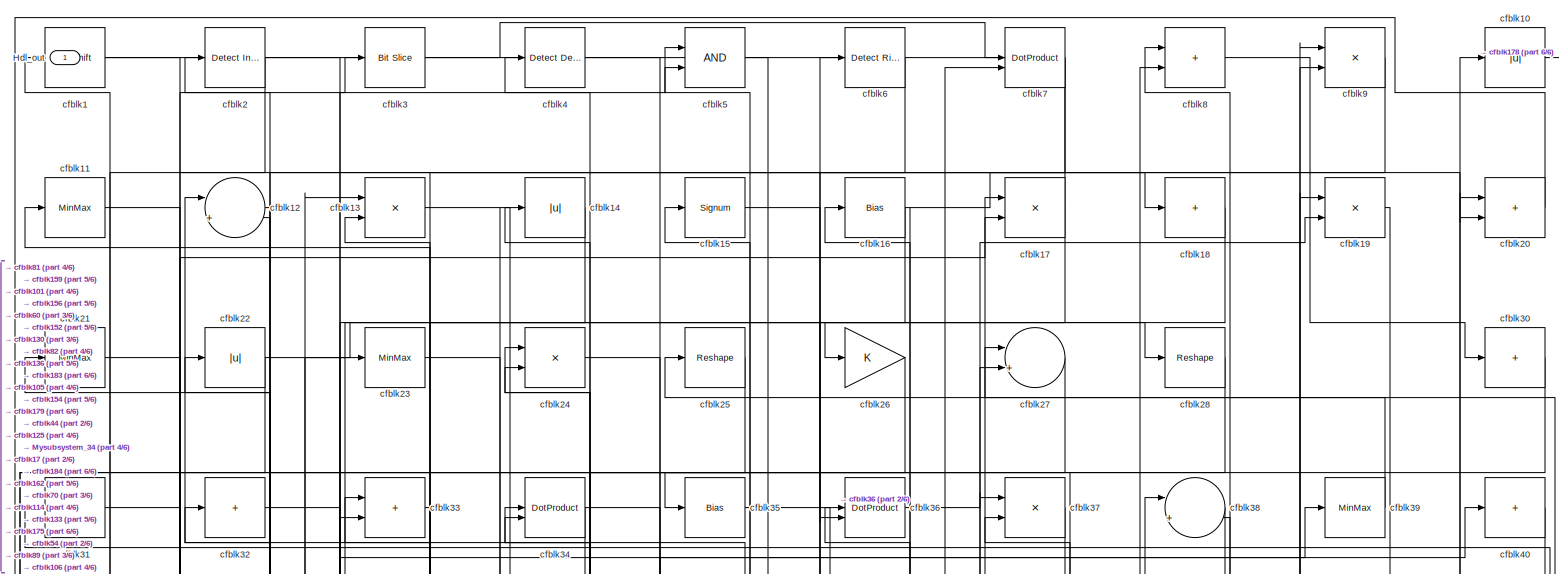
[diagram: root canvas - part 1/6, full width, top band]
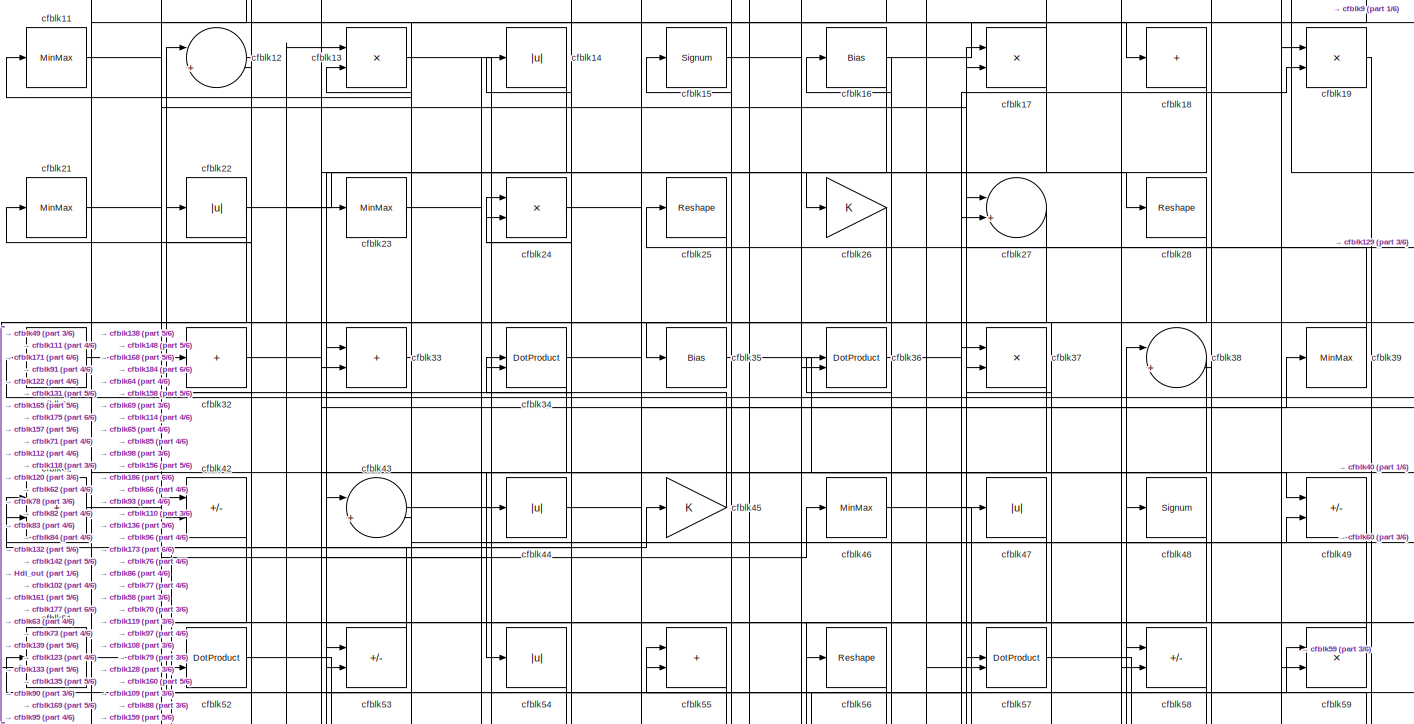
[diagram: root canvas - part 2/6, full width, top band]
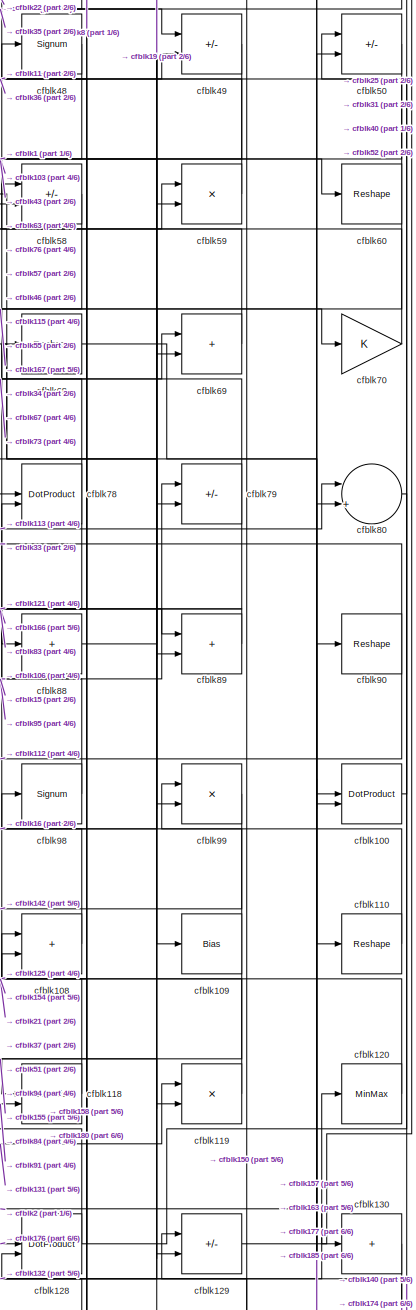
[diagram: root canvas - part 3/6, middle right region]
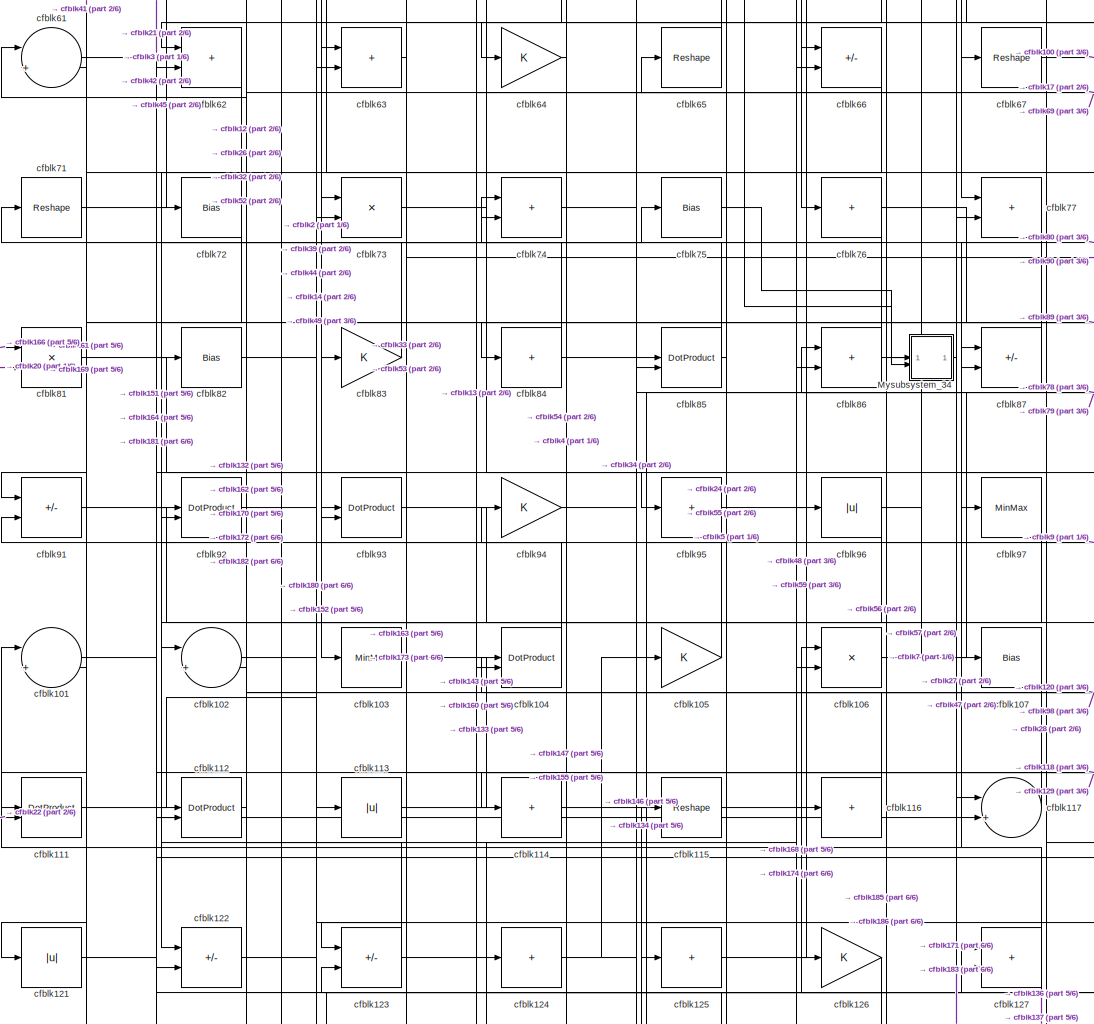
[diagram: root canvas - part 4/6, central region]
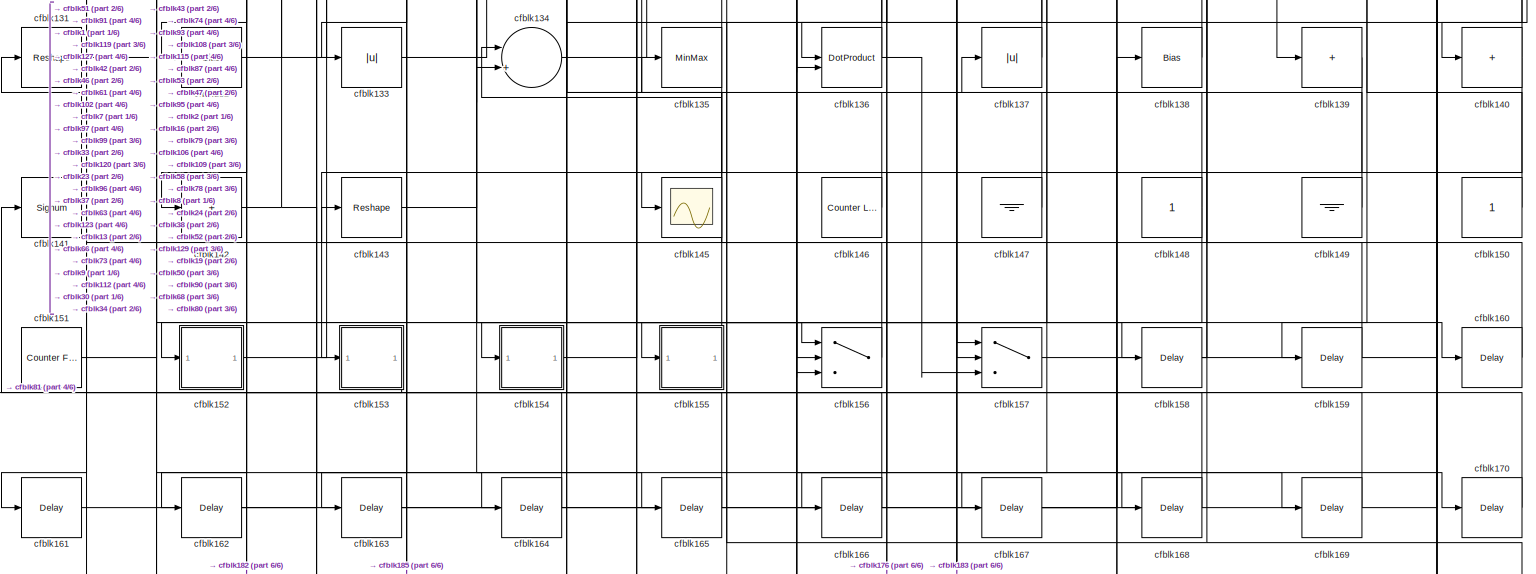
[diagram: root canvas - part 5/6, full width, bottom band]
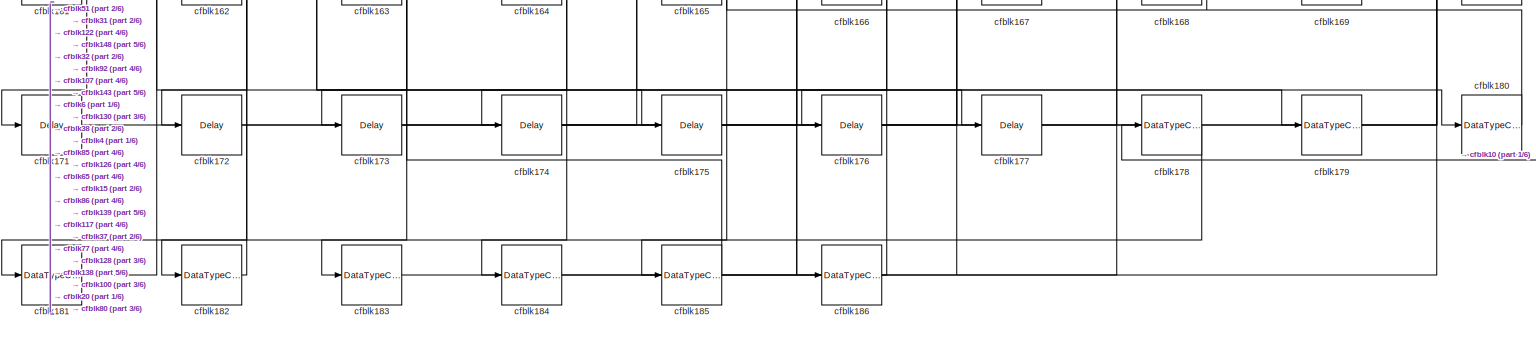
[diagram: root canvas - part 6/6, full width, bottom band]
MODEL slx_0590d7d05d27
KIND model
CONFIG AbsTol = auto
CONFIG EnableMultiTasking = off
CONFIG FixedStep = auto
CONFIG MaxStep = auto
CONFIG MinStep = auto
CONFIG RelTol = 1e-3
CONFIG SampleTimeConstraint = Unconstrained
CONFIG SolverName = VariableStepAuto
CONFIG StartTime = 0.0
CONFIG StopTime = 10.0
BLOCK [Outport] Hdl_out
  OutDataTypeStr = uint8
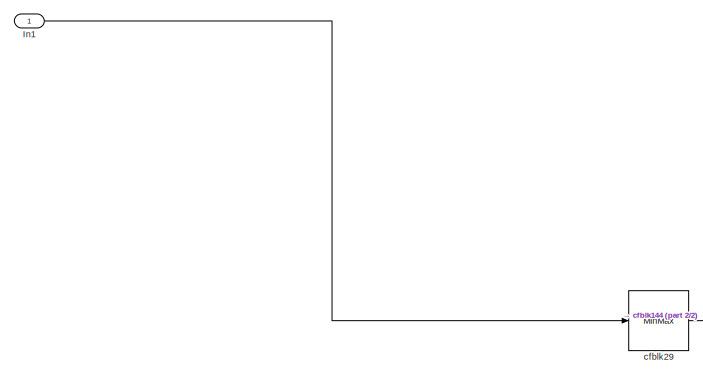
[diagram: Mysubsystem_34 - part 1/2, top center region]
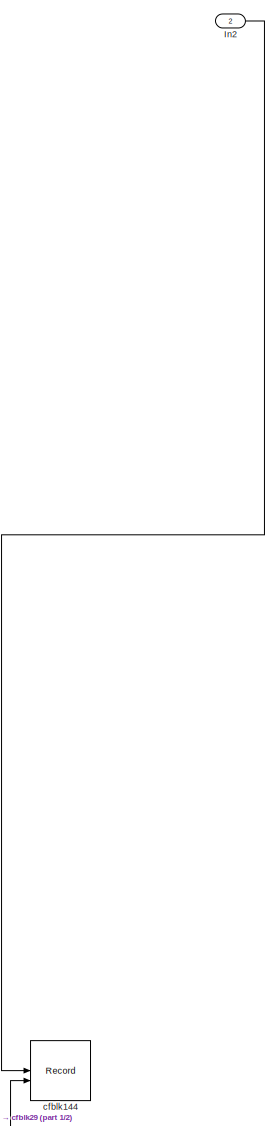
[diagram: Mysubsystem_34 - part 2/2, bottom left region]
BLOCK [SubSystem] Mysubsystem_34
  RTWFcnName = Mysubsystem_34
  RTWFcnNameOpts = User specified
  RTWFileNameOpts = Use function name
  RTWSystemCode = Reusable function
  TreatAsAtomicUnit = on
BLOCK [Inport] Mysubsystem_34/In1
BLOCK [Inport] Mysubsystem_34/In2
  Port = 2
BLOCK [Record] Mysubsystem_34/cfblk144
  CompatibilityTag = XY
  FileSettingsInternal = {"entries":[{"content":{"excelSettings":{"content":{},"type":"Streamout.ExcelSettings"}},"type":"Streamout.FileSettingStorage","uuid":""}],"packageUris":["http:\/\/schema.mathworks.com\/mf0\/streamout_blocks\/R2020a"],"version":"1.0"}
  Layout = [1 1]
  SignalsInternal = {"entries":[{"content":{},"type":"RecordBlkView.InputSignals","uuid":""}],"packageUris":["http:\/\/schema.mathworks.com\/mf0\/streamout_blocks\/R2020a"],"version":"1.0"}
  VisualizationBindings = {"xyplotplugin":{"info":[{"series":[],"subplotID":1}]}}
  st = -1
BLOCK [MinMax] Mysubsystem_34/cfblk29
BLOCK [Reference] cfblk1  REF=hdlsllib/Logic and Bit
Operations/Bit Shift
  SourceBlock = hdlsllib/Logic and Bit\nOperations/Bit Shift
  SourceType = Bit Shift
BLOCK [Abs] cfblk10
  OutDataTypeStr = uint8
  SaturateOnIntegerOverflow = off
BLOCK [DotProduct] cfblk100
  OutDataTypeStr = uint8
BLOCK [Sum] cfblk101
  Inputs = |++
  OutDataTypeStr = uint8
BLOCK [Sum] cfblk102
  Inputs = |++
  OutDataTypeStr = uint8
BLOCK [MinMax] cfblk103
  OutDataTypeStr = uint8
BLOCK [DotProduct] cfblk104
  OutDataTypeStr = uint8
BLOCK [Gain] cfblk105
  OutDataTypeStr = uint8
BLOCK [Product] cfblk106
  Inputs = */
  OutDataTypeStr = uint8
  RndMeth = Zero
  SaturateOnIntegerOverflow = on
BLOCK [Bias] cfblk107
  Bias = 0.0
  SaturateOnIntegerOverflow = off
BLOCK [Sum] cfblk108
  IconShape = rectangular
  OutDataTypeStr = uint8
BLOCK [Bias] cfblk109
  Bias = 0.0
  SaturateOnIntegerOverflow = off
BLOCK [MinMax] cfblk11
  OutDataTypeStr = uint8
BLOCK [Reshape] cfblk110
BLOCK [DotProduct] cfblk111
  OutDataTypeStr = uint8
BLOCK [DotProduct] cfblk112
  OutDataTypeStr = uint8
BLOCK [Abs] cfblk113
  OutDataTypeStr = uint8
  SaturateOnIntegerOverflow = off
BLOCK [Sum] cfblk114
  IconShape = rectangular
  Inputs = +
  OutDataTypeStr = uint8
BLOCK [Reshape] cfblk115
BLOCK [Sum] cfblk116
  IconShape = rectangular
  Inputs = +
  OutDataTypeStr = uint8
BLOCK [Sum] cfblk117
  Inputs = |++
  OutDataTypeStr = uint8
BLOCK [DotProduct] cfblk118
  OutDataTypeStr = uint8
BLOCK [Product] cfblk119
  Inputs = */
  OutDataTypeStr = uint8
  RndMeth = Zero
  SaturateOnIntegerOverflow = on
BLOCK [Sum] cfblk12
  Inputs = |++
  OutDataTypeStr = uint8
BLOCK [MinMax] cfblk120
  OutDataTypeStr = uint8
BLOCK [Abs] cfblk121
  OutDataTypeStr = uint8
  SaturateOnIntegerOverflow = off
BLOCK [Sum] cfblk122
  IconShape = rectangular
  Inputs = +-
  OutDataTypeStr = uint8
BLOCK [Sum] cfblk123
  IconShape = rectangular
  Inputs = +-
  OutDataTypeStr = uint8
BLOCK [Sum] cfblk124
  IconShape = rectangular
  Inputs = +
  OutDataTypeStr = uint8
BLOCK [Sum] cfblk125
  IconShape = rectangular
  Inputs = +
  OutDataTypeStr = uint8
BLOCK [Gain] cfblk126
  OutDataTypeStr = uint8
BLOCK [Sum] cfblk127
  IconShape = rectangular
  OutDataTypeStr = uint8
BLOCK [DotProduct] cfblk128
  OutDataTypeStr = uint8
BLOCK [Sum] cfblk129
  IconShape = rectangular
  Inputs = +-
  OutDataTypeStr = uint8
BLOCK [Product] cfblk13
  Inputs = */
  OutDataTypeStr = uint8
  RndMeth = Zero
  SaturateOnIntegerOverflow = on
BLOCK [Sum] cfblk130
  IconShape = rectangular
  Inputs = +
  OutDataTypeStr = uint8
BLOCK [Reshape] cfblk131
BLOCK [Bias] cfblk132
  Bias = 0.0
  SaturateOnIntegerOverflow = off
BLOCK [Abs] cfblk133
  OutDataTypeStr = uint8
  SaturateOnIntegerOverflow = off
BLOCK [Sum] cfblk134
  Inputs = |++
  OutDataTypeStr = uint8
BLOCK [MinMax] cfblk135
  OutDataTypeStr = uint8
BLOCK [DotProduct] cfblk136
  OutDataTypeStr = uint8
BLOCK [Abs] cfblk137
  OutDataTypeStr = uint8
  SaturateOnIntegerOverflow = off
BLOCK [Bias] cfblk138
  Bias = 0.0
  SaturateOnIntegerOverflow = off
BLOCK [Sum] cfblk139
  IconShape = rectangular
  Inputs = +
  OutDataTypeStr = uint8
BLOCK [Abs] cfblk14
  OutDataTypeStr = uint8
  SaturateOnIntegerOverflow = off
BLOCK [Sum] cfblk140
  IconShape = rectangular
  Inputs = +
  OutDataTypeStr = uint8
BLOCK [Signum] cfblk141
BLOCK [Sum] cfblk142
  IconShape = rectangular
  Inputs = +
  OutDataTypeStr = uint8
BLOCK [Reshape] cfblk143
BLOCK [Scope] cfblk145
  Floating = off
  NumInputPorts = 1
  ScopeSpecificationString = Simulink.scopes.TimeScopeBlockCfg('CurrentConfiguration', extmgr.ConfigurationSet(extmgr.Configuration('Core','General UI',true),extmgr.Configuration('Core','Source UI',true),extmgr.Configuration('Sources','WiredSimulink',true,'DataLoggingVariableName','ScopeData2','DataLoggingSaveFormat','Array','DataLoggingLimitDataPoints',true,'DataLoggingDecimation','1'),extmgr.Configuration('Visuals','Time Do...<+868ch>
BLOCK [Reference] cfblk146  REF=hdlsllib/Sources/Counter
Limited
  SourceBlock = hdlsllib/Sources/Counter\nLimited
  SourceType = Counter Limited
BLOCK [Ground] cfblk147
BLOCK [Constant] cfblk148
  OutDataTypeStr = uint8
  SampleTime = -1
BLOCK [Ground] cfblk149
BLOCK [Signum] cfblk15
BLOCK [Constant] cfblk150
  OutDataTypeStr = uint8
  SampleTime = -1
BLOCK [Reference] cfblk151  REF=hdlsllib/Sources/Counter
Free-Running
  SourceBlock = hdlsllib/Sources/Counter\nFree-Running
  SourceType = Counter Free-Running
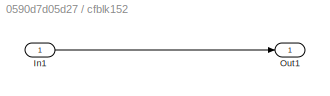
BLOCK [SubSystem] cfblk152
  LibrarySourceBlock = hdlsllib/Ports &\nSubsystems/Subsystem
BLOCK [Inport] cfblk152/In1
BLOCK [Outport] cfblk152/Out1
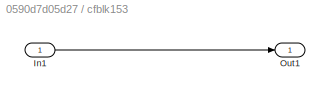
BLOCK [SubSystem] cfblk153
  LibrarySourceBlock = hdlsllib/Ports &\nSubsystems/Subsystem
BLOCK [Inport] cfblk153/In1
BLOCK [Outport] cfblk153/Out1
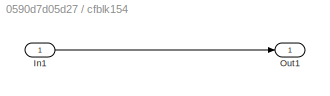
BLOCK [SubSystem] cfblk154
  LibrarySourceBlock = hdlsllib/Ports &\nSubsystems/Subsystem
BLOCK [Inport] cfblk154/In1
BLOCK [Outport] cfblk154/Out1
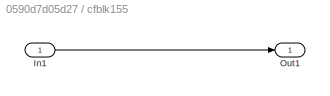
BLOCK [SubSystem] cfblk155
  LibrarySourceBlock = hdlsllib/Ports &\nSubsystems/Subsystem
BLOCK [Inport] cfblk155/In1
BLOCK [Outport] cfblk155/Out1
BLOCK [Switch] cfblk156
  InputSameDT = off
  OutDataTypeStr = uint8
  SaturateOnIntegerOverflow = off
BLOCK [Switch] cfblk157
  InputSameDT = off
  OutDataTypeStr = uint8
  SaturateOnIntegerOverflow = off
BLOCK [Delay] cfblk158
  InputPortMap = u0
  SampleTime = 1
BLOCK [Delay] cfblk159
  InputPortMap = u0
  SampleTime = 1
BLOCK [Bias] cfblk16
  Bias = 0.0
  SaturateOnIntegerOverflow = off
BLOCK [Delay] cfblk160
  InputPortMap = u0
  SampleTime = 1
BLOCK [Delay] cfblk161
  InputPortMap = u0
  SampleTime = 1
BLOCK [Delay] cfblk162
  InputPortMap = u0
  SampleTime = 1
BLOCK [Delay] cfblk163
  InputPortMap = u0
  SampleTime = 1
BLOCK [Delay] cfblk164
  InputPortMap = u0
  SampleTime = 1
BLOCK [Delay] cfblk165
  InputPortMap = u0
  SampleTime = 1
BLOCK [Delay] cfblk166
  InputPortMap = u0
  SampleTime = 1
BLOCK [Delay] cfblk167
  InputPortMap = u0
  SampleTime = 1
BLOCK [Delay] cfblk168
  InputPortMap = u0
  SampleTime = 1
BLOCK [Delay] cfblk169
  InputPortMap = u0
  SampleTime = 1
BLOCK [Product] cfblk17
  Inputs = */
  OutDataTypeStr = uint8
  RndMeth = Zero
  SaturateOnIntegerOverflow = on
BLOCK [Delay] cfblk170
  InputPortMap = u0
  SampleTime = 1
BLOCK [Delay] cfblk171
  InputPortMap = u0
  SampleTime = 1
BLOCK [Delay] cfblk172
  InputPortMap = u0
  SampleTime = 1
BLOCK [Delay] cfblk173
  InputPortMap = u0
  SampleTime = 1
BLOCK [Delay] cfblk174
  InputPortMap = u0
  SampleTime = 1
BLOCK [Delay] cfblk175
  InputPortMap = u0
  SampleTime = 1
BLOCK [Delay] cfblk176
  InputPortMap = u0
  SampleTime = 1
BLOCK [Delay] cfblk177
  InputPortMap = u0
  SampleTime = 1
BLOCK [DataTypeConversion] cfblk178
  OutDataTypeStr = uint8
  RndMeth = Floor
  SaturateOnIntegerOverflow = off
BLOCK [DataTypeConversion] cfblk179
  OutDataTypeStr = uint8
  RndMeth = Floor
  SaturateOnIntegerOverflow = off
BLOCK [Sum] cfblk18
  IconShape = rectangular
  Inputs = +
  OutDataTypeStr = uint8
BLOCK [DataTypeConversion] cfblk180
  OutDataTypeStr = uint8
  RndMeth = Floor
  SaturateOnIntegerOverflow = off
BLOCK [DataTypeConversion] cfblk181
  OutDataTypeStr = uint8
  RndMeth = Floor
  SaturateOnIntegerOverflow = off
BLOCK [DataTypeConversion] cfblk182
  OutDataTypeStr = uint8
  RndMeth = Floor
  SaturateOnIntegerOverflow = off
BLOCK [DataTypeConversion] cfblk183
  OutDataTypeStr = uint8
  RndMeth = Floor
  SaturateOnIntegerOverflow = off
BLOCK [DataTypeConversion] cfblk184
  OutDataTypeStr = uint8
  RndMeth = Floor
  SaturateOnIntegerOverflow = off
BLOCK [DataTypeConversion] cfblk185
  OutDataTypeStr = uint8
  RndMeth = Floor
  SaturateOnIntegerOverflow = off
BLOCK [DataTypeConversion] cfblk186
  OutDataTypeStr = uint8
  RndMeth = Floor
  SaturateOnIntegerOverflow = off
BLOCK [Product] cfblk19
  Inputs = */
  OutDataTypeStr = uint8
  RndMeth = Zero
  SaturateOnIntegerOverflow = on
BLOCK [Reference] cfblk2  REF=simulink/Logic and Bit
Operations/Detect
Increase
  LibrarySourceBlock = hdlsllib/Logic and Bit\nOperations/Detect\nIncrease
  SourceBlock = simulink/Logic and Bit\nOperations/Detect\nIncrease
  SourceType = Detect Increase
BLOCK [Sum] cfblk20
  IconShape = rectangular
  OutDataTypeStr = uint8
BLOCK [MinMax] cfblk21
  OutDataTypeStr = uint8
BLOCK [Abs] cfblk22
  OutDataTypeStr = uint8
  SaturateOnIntegerOverflow = off
BLOCK [MinMax] cfblk23
  OutDataTypeStr = uint8
BLOCK [Product] cfblk24
  Inputs = */
  OutDataTypeStr = uint8
  RndMeth = Zero
  SaturateOnIntegerOverflow = on
BLOCK [Reshape] cfblk25
BLOCK [Gain] cfblk26
  OutDataTypeStr = uint8
BLOCK [Sum] cfblk27
  Inputs = |++
  OutDataTypeStr = uint8
BLOCK [Reshape] cfblk28
BLOCK [Reference] cfblk3  REF=hdlsllib/Logic and Bit
Operations/Bit Slice
  SourceBlock = hdlsllib/Logic and Bit\nOperations/Bit Slice
  SourceType = Bit Slice
BLOCK [Sum] cfblk30
  IconShape = rectangular
  Inputs = +
  OutDataTypeStr = uint8
BLOCK [Sum] cfblk31
  IconShape = rectangular
  Inputs = +
  OutDataTypeStr = uint8
BLOCK [Sum] cfblk32
  IconShape = rectangular
  Inputs = +
  OutDataTypeStr = uint8
BLOCK [Sum] cfblk33
  IconShape = rectangular
  OutDataTypeStr = uint8
BLOCK [DotProduct] cfblk34
  OutDataTypeStr = uint8
BLOCK [Bias] cfblk35
  Bias = 0.0
  SaturateOnIntegerOverflow = off
BLOCK [DotProduct] cfblk36
  OutDataTypeStr = uint8
BLOCK [Product] cfblk37
  Inputs = */
  OutDataTypeStr = uint8
  RndMeth = Zero
  SaturateOnIntegerOverflow = on
BLOCK [Sum] cfblk38
  Inputs = |++
  OutDataTypeStr = uint8
BLOCK [MinMax] cfblk39
  OutDataTypeStr = uint8
BLOCK [Reference] cfblk4  REF=simulink/Logic and Bit
Operations/Detect
Decrease
  LibrarySourceBlock = hdlsllib/Logic and Bit\nOperations/Detect\nDecrease
  SourceBlock = simulink/Logic and Bit\nOperations/Detect\nDecrease
  SourceType = Detect Decrease
BLOCK [Sum] cfblk40
  IconShape = rectangular
  Inputs = +
  OutDataTypeStr = uint8
BLOCK [Sum] cfblk41
  IconShape = rectangular
  OutDataTypeStr = uint8
BLOCK [Sum] cfblk42
  IconShape = rectangular
  Inputs = +-
  OutDataTypeStr = uint8
BLOCK [Sum] cfblk43
  Inputs = |++
  OutDataTypeStr = uint8
BLOCK [Abs] cfblk44
  OutDataTypeStr = uint8
  SaturateOnIntegerOverflow = off
BLOCK [Gain] cfblk45
  OutDataTypeStr = uint8
BLOCK [MinMax] cfblk46
  OutDataTypeStr = uint8
BLOCK [Abs] cfblk47
  OutDataTypeStr = uint8
  SaturateOnIntegerOverflow = off
BLOCK [Signum] cfblk48
BLOCK [Sum] cfblk49
  IconShape = rectangular
  Inputs = +-
  OutDataTypeStr = uint8
BLOCK [Logic] cfblk5
  AllPortsSameDT = off
  OutDataTypeStr = boolean
BLOCK [Sum] cfblk50
  IconShape = rectangular
  Inputs = +-
  OutDataTypeStr = uint8
BLOCK [DotProduct] cfblk51
  OutDataTypeStr = uint8
BLOCK [DotProduct] cfblk52
  OutDataTypeStr = uint8
BLOCK [Sum] cfblk53
  IconShape = rectangular
  Inputs = +-
  OutDataTypeStr = uint8
BLOCK [Abs] cfblk54
  OutDataTypeStr = uint8
  SaturateOnIntegerOverflow = off
BLOCK [Sum] cfblk55
  IconShape = rectangular
  OutDataTypeStr = uint8
BLOCK [Reshape] cfblk56
BLOCK [DotProduct] cfblk57
  OutDataTypeStr = uint8
BLOCK [Sum] cfblk58
  IconShape = rectangular
  Inputs = +-
  OutDataTypeStr = uint8
BLOCK [Product] cfblk59
  Inputs = */
  OutDataTypeStr = uint8
  RndMeth = Zero
  SaturateOnIntegerOverflow = on
BLOCK [Reference] cfblk6  REF=hdlsllib/Logic and Bit
Operations/Detect Rise
Nonnegative
  SourceBlock = hdlsllib/Logic and Bit\nOperations/Detect Rise\nNonnegative
  SourceType = Detect Rise Nonnegative
BLOCK [Reshape] cfblk60
BLOCK [Sum] cfblk61
  Inputs = |++
  OutDataTypeStr = uint8
BLOCK [Sum] cfblk62
  IconShape = rectangular
  OutDataTypeStr = uint8
BLOCK [Sum] cfblk63
  IconShape = rectangular
  OutDataTypeStr = uint8
BLOCK [Gain] cfblk64
  OutDataTypeStr = uint8
BLOCK [Reshape] cfblk65
BLOCK [Sum] cfblk66
  IconShape = rectangular
  Inputs = +-
  OutDataTypeStr = uint8
BLOCK [Reshape] cfblk67
BLOCK [Reshape] cfblk68
BLOCK [Sum] cfblk69
  IconShape = rectangular
  OutDataTypeStr = uint8
BLOCK [DotProduct] cfblk7
  OutDataTypeStr = uint8
BLOCK [Gain] cfblk70
  OutDataTypeStr = uint8
BLOCK [Reshape] cfblk71
BLOCK [Bias] cfblk72
  Bias = 0.0
  SaturateOnIntegerOverflow = off
BLOCK [Product] cfblk73
  Inputs = */
  OutDataTypeStr = uint8
  RndMeth = Zero
  SaturateOnIntegerOverflow = on
BLOCK [Sum] cfblk74
  IconShape = rectangular
  OutDataTypeStr = uint8
BLOCK [Bias] cfblk75
  Bias = 0.0
  SaturateOnIntegerOverflow = off
BLOCK [Sum] cfblk76
  IconShape = rectangular
  Inputs = +
  OutDataTypeStr = uint8
BLOCK [Sum] cfblk77
  IconShape = rectangular
  OutDataTypeStr = uint8
BLOCK [DotProduct] cfblk78
  OutDataTypeStr = uint8
BLOCK [Sum] cfblk79
  IconShape = rectangular
  Inputs = +-
  OutDataTypeStr = uint8
BLOCK [Sum] cfblk8
  IconShape = rectangular
  OutDataTypeStr = uint8
BLOCK [Sum] cfblk80
  Inputs = |++
  OutDataTypeStr = uint8
BLOCK [Product] cfblk81
  Inputs = */
  OutDataTypeStr = uint8
  RndMeth = Zero
  SaturateOnIntegerOverflow = on
BLOCK [Bias] cfblk82
  Bias = 0.0
  SaturateOnIntegerOverflow = off
BLOCK [Gain] cfblk83
  OutDataTypeStr = uint8
BLOCK [Sum] cfblk84
  IconShape = rectangular
  Inputs = +
  OutDataTypeStr = uint8
BLOCK [DotProduct] cfblk85
  OutDataTypeStr = uint8
BLOCK [Sum] cfblk86
  IconShape = rectangular
  OutDataTypeStr = uint8
BLOCK [Sum] cfblk87
  IconShape = rectangular
  Inputs = +-
  OutDataTypeStr = uint8
BLOCK [Sum] cfblk88
  IconShape = rectangular
  Inputs = +
  OutDataTypeStr = uint8
BLOCK [Sum] cfblk89
  IconShape = rectangular
  OutDataTypeStr = uint8
BLOCK [Product] cfblk9
  Inputs = */
  OutDataTypeStr = uint8
  RndMeth = Zero
  SaturateOnIntegerOverflow = on
BLOCK [Reshape] cfblk90
BLOCK [Sum] cfblk91
  IconShape = rectangular
  Inputs = +-
  OutDataTypeStr = uint8
BLOCK [DotProduct] cfblk92
  OutDataTypeStr = uint8
BLOCK [DotProduct] cfblk93
  OutDataTypeStr = uint8
BLOCK [Gain] cfblk94
  OutDataTypeStr = uint8
BLOCK [Sum] cfblk95
  IconShape = rectangular
  Inputs = +
  OutDataTypeStr = uint8
BLOCK [Abs] cfblk96
  OutDataTypeStr = uint8
  SaturateOnIntegerOverflow = off
BLOCK [MinMax] cfblk97
  OutDataTypeStr = uint8
BLOCK [Signum] cfblk98
BLOCK [Product] cfblk99
  Inputs = */
  OutDataTypeStr = uint8
  RndMeth = Zero
  SaturateOnIntegerOverflow = on
LINE Mysubsystem_34/In1:1 -> Mysubsystem_34/cfblk29:1
LINE Mysubsystem_34/In2:1 -> Mysubsystem_34/cfblk144:1
LINE Mysubsystem_34/cfblk29:1 -> Mysubsystem_34/cfblk144:2
LINE cfblk100:1 -> cfblk50:1
LINE cfblk101:1 -> cfblk3:1
LINE cfblk102:1 -> cfblk44:1
LINE cfblk103:1 -> cfblk129:2
LINE cfblk104:1 -> cfblk61:2
LINE cfblk105:1 -> cfblk4:1
NET cfblk106:1 -> cfblk78:2, cfblk7:2
LINE cfblk107:1 -> cfblk173:1
LINE cfblk108:1 -> cfblk38:1
NET cfblk109:1 -> cfblk155:1, cfblk99:1
LINE cfblk10:1 -> cfblk178:1
LINE cfblk110:1 -> cfblk16:1
NET cfblk111:1 -> cfblk57:1, cfblk73:2
LINE cfblk112:1 -> cfblk12:2
LINE cfblk113:1 -> cfblk80:1
LINE cfblk114:1 -> cfblk9:1
LINE cfblk115:1 -> cfblk59:1
LINE cfblk116:1 -> cfblk104:1
LINE cfblk117:1 -> cfblk86:1
LINE cfblk118:1 -> cfblk51:1
LINE cfblk119:1 -> cfblk37:2
LINE cfblk11:1 -> cfblk56:1
NET cfblk120:1 -> cfblk21:1, cfblk94:1
LINE cfblk121:1 -> cfblk75:1
NET cfblk122:1 -> cfblk172:1, cfblk39:1
NET cfblk123:1 -> cfblk160:1, cfblk72:1
NET cfblk124:1 -> cfblk105:1, cfblk85:1
NET cfblk125:1 -> cfblk5:2, cfblk98:1
LINE cfblk126:1 -> cfblk185:1
NET cfblk127:1 -> cfblk101:1, cfblk107:1, cfblk136:2
NET cfblk128:1 -> cfblk31:1, cfblk48:1, cfblk52:2
LINE cfblk129:1 -> cfblk25:1
LINE cfblk12:1 -> cfblk82:1
LINE cfblk130:1 -> cfblk174:1
NET cfblk131:1 -> cfblk119:1, cfblk46:1
NET cfblk132:1 -> cfblk120:1, cfblk23:1
NET cfblk133:1 -> cfblk106:2, cfblk9:2
LINE cfblk134:1 -> cfblk87:1
NET cfblk135:1 -> cfblk145:1, cfblk53:1
NET cfblk136:1 -> cfblk13:2, cfblk157:3, cfblk2:1
LINE cfblk137:1 -> cfblk106:1
LINE cfblk138:1 -> cfblk24:1
LINE cfblk139:1 -> cfblk176:1
NET cfblk13:1 -> cfblk169:1, cfblk95:1
NET cfblk140:1 -> cfblk153:1, cfblk68:1
LINE cfblk141:1 -> cfblk131:1
NET cfblk142:1 -> cfblk13:1, cfblk165:1
LINE cfblk143:1 -> cfblk66:1
NET cfblk146:1 -> cfblk115:1, cfblk74:1, cfblk74:2
LINE cfblk147:1 -> cfblk112:1
NET cfblk148:1 -> cfblk182:1, cfblk43:1
LINE cfblk149:1 -> cfblk137:1
LINE cfblk14:1 -> cfblk73:1
LINE cfblk150:1 -> cfblk129:1
LINE cfblk151:1 -> cfblk127:1
LINE cfblk152/In1:1 -> cfblk152/Out1:1
LINE cfblk152:1 -> cfblk96:1
LINE cfblk153/In1:1 -> cfblk153/Out1:1
LINE cfblk153:1 -> cfblk141:1
LINE cfblk154/In1:1 -> cfblk154/Out1:1
LINE cfblk154:1 -> cfblk108:1
LINE cfblk155/In1:1 -> cfblk155/Out1:1
NET cfblk155:1 -> cfblk134:1, cfblk93:2
LINE cfblk156:1 -> cfblk135:1
NET cfblk157:1 -> cfblk170:1, cfblk90:1
LINE cfblk158:1 -> cfblk108:2
LINE cfblk159:1 -> cfblk1:1
LINE cfblk15:1 -> cfblk186:1
LINE cfblk160:1 -> cfblk38:2
LINE cfblk161:1 -> cfblk33:2
LINE cfblk162:1 -> cfblk8:2
LINE cfblk163:1 -> cfblk50:2
LINE cfblk164:1 -> cfblk123:2
LINE cfblk165:1 -> cfblk42:1
LINE cfblk166:1 -> cfblk81:1
LINE cfblk167:1 -> cfblk78:1
LINE cfblk168:1 -> cfblk34:2
LINE cfblk169:1 -> cfblk91:2
NET cfblk16:1 -> cfblk136:1, cfblk18:1, cfblk26:1
LINE cfblk170:1 -> cfblk102:2
LINE cfblk171:1 -> cfblk77:2
LINE cfblk172:1 -> cfblk85:2
LINE cfblk173:1 -> cfblk37:1
LINE cfblk174:1 -> cfblk86:2
LINE cfblk175:1 -> cfblk20:1
LINE cfblk176:1 -> cfblk128:1
LINE cfblk177:1 -> cfblk80:2
LINE cfblk178:1 -> cfblk181:1
LINE cfblk179:1 -> cfblk10:1
NET cfblk17:1 -> Hdl_out:1, cfblk63:2, cfblk66:2
NET cfblk180:1 -> cfblk128:2, cfblk65:1
LINE cfblk181:1 -> cfblk92:1
LINE cfblk182:1 -> cfblk92:2
NET cfblk183:1 -> cfblk117:1, cfblk138:1
LINE cfblk184:1 -> cfblk6:1
NET cfblk185:1 -> cfblk100:1, cfblk143:1
LINE cfblk186:1 -> cfblk126:1
LINE cfblk18:1 -> cfblk43:2
LINE cfblk19:1 -> cfblk159:1
NET cfblk1:1 -> cfblk156:1, cfblk20:2, cfblk60:1
LINE cfblk20:1 -> cfblk81:2
LINE cfblk21:1 -> cfblk122:2
NET cfblk22:1 -> cfblk111:2, cfblk28:1, cfblk49:1
NET cfblk23:1 -> cfblk156:3, cfblk157:2
LINE cfblk24:1 -> cfblk158:1
LINE cfblk25:1 -> cfblk35:1
LINE cfblk26:1 -> cfblk62:1
LINE cfblk27:1 -> cfblk51:2
NET cfblk28:1 -> cfblk42:2, cfblk97:1
NET cfblk2:1 -> cfblk101:2, cfblk130:1
LINE cfblk30:1 -> cfblk154:1
LINE cfblk31:1 -> cfblk175:1
LINE cfblk32:1 -> cfblk177:1
LINE cfblk33:1 -> cfblk123:1
NET cfblk34:1 -> cfblk69:2, cfblk91:1
LINE cfblk35:1 -> cfblk109:1
LINE cfblk36:1 -> cfblk19:2
LINE cfblk37:1 -> cfblk133:1
LINE cfblk38:1 -> cfblk184:1
LINE cfblk39:1 -> cfblk27:1
LINE cfblk3:1 -> cfblk7:1
NET cfblk40:1 -> cfblk54:1, cfblk89:2
LINE cfblk41:1 -> cfblk17:2
LINE cfblk42:1 -> cfblk62:2
LINE cfblk43:1 -> cfblk59:2
LINE cfblk44:1 -> cfblk40:1
LINE cfblk45:1 -> cfblk12:1
NET cfblk46:1 -> cfblk58:2, cfblk70:1
NET cfblk47:1 -> cfblk156:2, cfblk77:1
LINE cfblk48:1 -> cfblk76:1
NET cfblk49:1 -> cfblk103:1, cfblk63:1
LINE cfblk4:1 -> cfblk179:1
NET cfblk50:1 -> cfblk119:2, cfblk88:1
NET cfblk51:1 -> cfblk157:1, cfblk171:1
LINE cfblk52:1 -> cfblk139:1
LINE cfblk53:1 -> cfblk41:1
LINE cfblk54:1 -> cfblk64:1
LINE cfblk55:1 -> cfblk114:1
LINE cfblk56:1 -> cfblk93:1
LINE cfblk57:1 -> cfblk79:2
LINE cfblk58:1 -> cfblk167:1
LINE cfblk59:1 -> cfblk11:1
LINE cfblk5:1 -> Mysubsystem_34:1
NET cfblk60:1 -> cfblk36:1, cfblk99:2
LINE cfblk61:1 -> cfblk164:1
LINE cfblk62:1 -> cfblk122:1
LINE cfblk63:1 -> cfblk163:1
LINE cfblk64:1 -> cfblk34:1
LINE cfblk65:1 -> cfblk24:2
NET cfblk66:1 -> cfblk161:1, cfblk162:1
LINE cfblk67:1 -> cfblk100:2
LINE cfblk68:1 -> cfblk110:1
LINE cfblk69:1 -> cfblk55:1
LINE cfblk6:1 -> cfblk183:1
LINE cfblk70:1 -> cfblk8:1
LINE cfblk71:1 -> cfblk45:1
LINE cfblk72:1 -> cfblk111:1
NET cfblk73:1 -> cfblk134:2, cfblk17:1, cfblk49:2, cfblk69:1
LINE cfblk74:1 -> cfblk67:1
LINE cfblk75:1 -> Mysubsystem_34:2
NET cfblk76:1 -> cfblk27:2, cfblk84:1, cfblk89:1
LINE cfblk77:1 -> cfblk102:1
NET cfblk78:1 -> cfblk121:1, cfblk22:1
NET cfblk79:1 -> cfblk166:1, cfblk58:1
LINE cfblk7:1 -> cfblk152:1
LINE cfblk80:1 -> cfblk140:1
NET cfblk81:1 -> cfblk113:1, cfblk117:2
NET cfblk82:1 -> cfblk104:2, cfblk5:1
NET cfblk83:1 -> cfblk32:1, cfblk41:2
NET cfblk84:1 -> cfblk118:1, cfblk52:1
NET cfblk85:1 -> cfblk125:1, cfblk53:2, cfblk55:2
NET cfblk86:1 -> cfblk14:1, cfblk47:1
LINE cfblk87:1 -> cfblk71:1
LINE cfblk88:1 -> cfblk19:1
LINE cfblk89:1 -> cfblk83:1
LINE cfblk8:1 -> cfblk30:1
NET cfblk90:1 -> cfblk112:2, cfblk33:1
NET cfblk91:1 -> cfblk118:2, cfblk124:1
LINE cfblk92:1 -> cfblk180:1
LINE cfblk93:1 -> cfblk116:1
LINE cfblk94:1 -> cfblk87:2
NET cfblk95:1 -> cfblk168:1, cfblk79:1
NET cfblk96:1 -> cfblk57:2, cfblk61:1
NET cfblk97:1 -> cfblk127:2, cfblk132:1
LINE cfblk98:1 -> cfblk15:1
LINE cfblk99:1 -> cfblk142:1
LINE cfblk9:1 -> cfblk36:2
note: NET lines group one-source signal fan-out (src -> all destinations, sorted); 1:1 wires keep LINE
